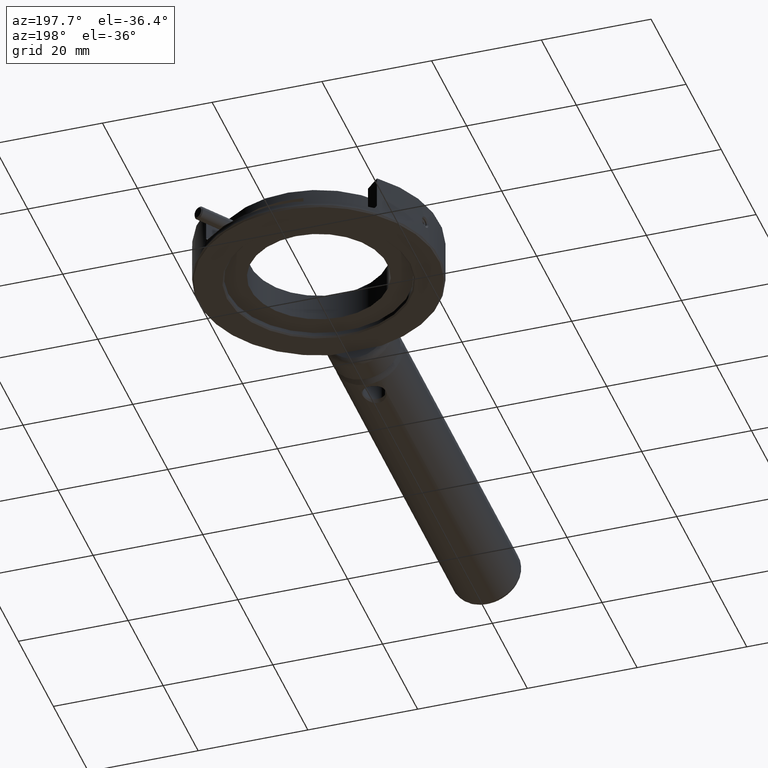
[diagram: clean part render]
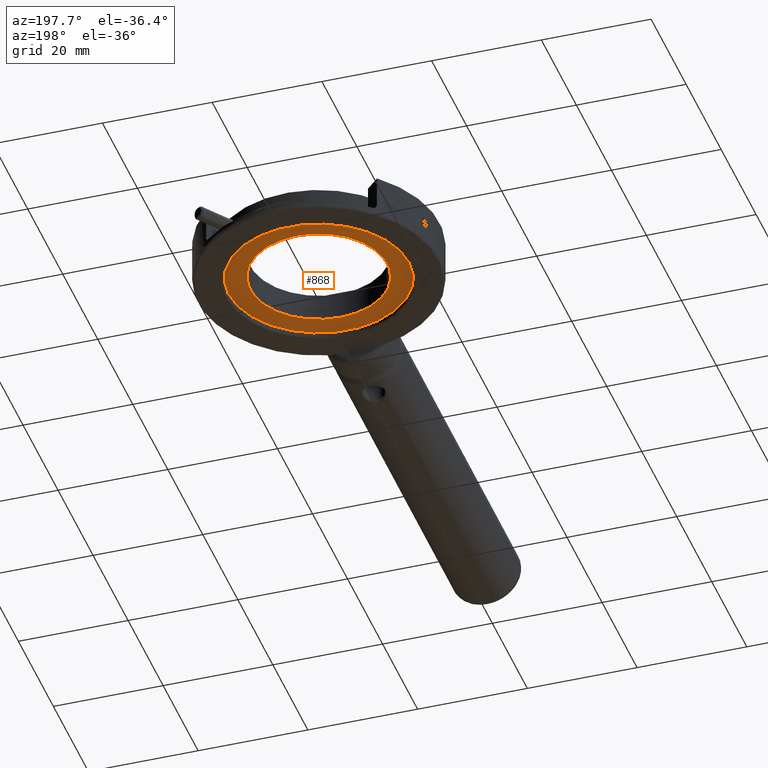
[diagram: same view with one face highlighted and labeled with its STEP entity id]
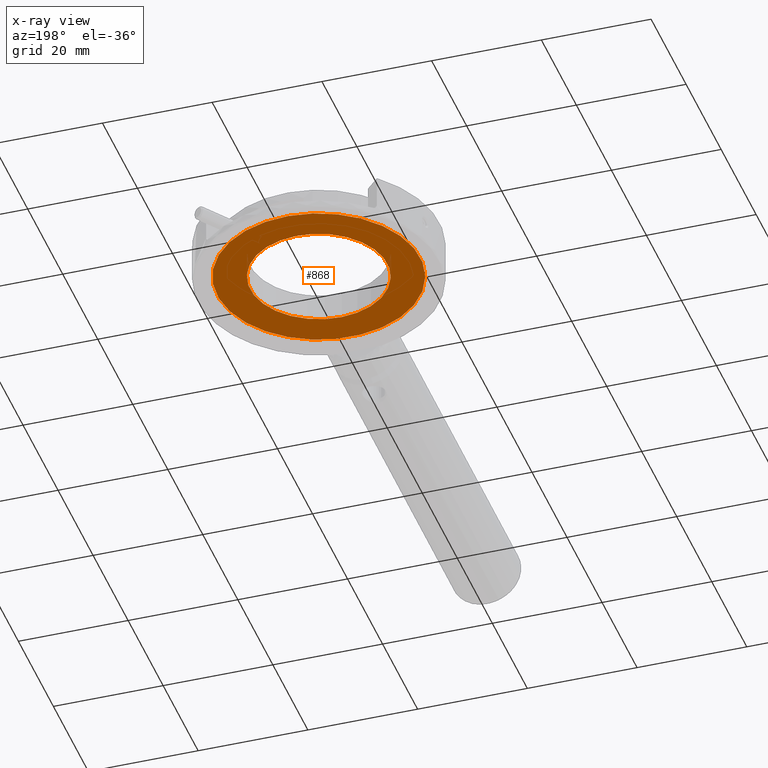
[diagram: x-ray of the same camera — body ghosted, the highlighted face saturated]
A machine part, auxiliary view. The second image highlights one B-rep face of the part: STEP entity #868.
The next image is the same camera in x-ray: the body ghosted, the highlighted face saturated — about 0% of this face is hidden behind the body in this view.
In plain terms, the highlighted planar face has unit normal (-0, -0, -1).
Its self-contained STEP definition (entity closure, byte-faithful):
#490 = CARTESIAN_POINT ( 'NONE',  ( 0.03631047345557893158, 58.99999999999995026, -2.999999999999993339 ) ) ;
#534 = ORIENTED_EDGE ( 'NONE', *, *, #3160, .T. ) ;
#637 = CIRCLE ( 'NONE', #1416, 12.50000000000000355 ) ;
#697 = DIRECTION ( 'NONE',  ( -0.8132227135242090510, 0.5819525910315395123, -1.665334536937727908E-16 ) ) ;
#868 = ADVANCED_FACE ( 'NONE', ( #2218, #1291 ), #4559, .T. ) ;
#948 = AXIS2_PLACEMENT_3D ( 'NONE', #3396, #2252, #697 ) ;
#1291 = FACE_OUTER_BOUND ( 'NONE', #3984, .T. ) ;
#1416 = AXIS2_PLACEMENT_3D ( 'NONE', #490, #4783, #2118 ) ;
#1975 = AXIS2_PLACEMENT_3D ( 'NONE', #6123, #5556, #5586 ) ;
#2118 = DIRECTION ( 'NONE',  ( -0.8132227135242089400, 0.5819525910315397343, -1.734723475976806601E-16 ) ) ;
#2218 = FACE_BOUND ( 'NONE', #3727, .T. ) ;
#2252 = DIRECTION ( 'NONE',  ( -1.065302022606572747E-15, -1.774820270857323644E-15, -1.000000000000000000 ) ) ;
#2286 = VERTEX_POINT ( 'NONE', #4460 ) ;
#2355 = VERTEX_POINT ( 'NONE', #4997 ) ;
#2857 = EDGE_CURVE ( 'NONE', #2355, #2355, #5056, .T. ) ;
#3160 = EDGE_CURVE ( 'NONE', #2286, #2286, #637, .T. ) ;
#3396 = CARTESIAN_POINT ( 'NONE',  ( 0.03631047345557893158, 58.99999999999995026, -2.999999999999993339 ) ) ;
#3727 = EDGE_LOOP ( 'NONE', ( #534 ) ) ;
#3984 = EDGE_LOOP ( 'NONE', ( #5355 ) ) ;
#4460 = CARTESIAN_POINT ( 'NONE',  ( -10.12897344559703505, 66.27440738789420038, -2.999999999999995559 ) ) ;
#4559 = PLANE ( 'NONE',  #948 ) ;
#4783 = DIRECTION ( 'NONE',  ( 1.065302022606572944E-15, 1.774820270857323644E-15, 1.000000000000000000 ) ) ;
#4997 = CARTESIAN_POINT ( 'NONE',  ( -15.00830972674229713, 69.76612293408341259, -2.999999999999996447 ) ) ;
#5056 = CIRCLE ( 'NONE', #1975, 18.49999999999999645 ) ;
#5355 = ORIENTED_EDGE ( 'NONE', *, *, #2857, .F. ) ;
#5556 = DIRECTION ( 'NONE',  ( 1.065302022606572944E-15, 1.774820270857323644E-15, 1.000000000000000000 ) ) ;
#5586 = DIRECTION ( 'NONE',  ( -0.8132227135242098282, 0.5819525910315384021, -1.640954639437520504E-16 ) ) ;
#6123 = CARTESIAN_POINT ( 'NONE',  ( 0.03631047345557893158, 58.99999999999995026, -2.999999999999993339 ) ) ;